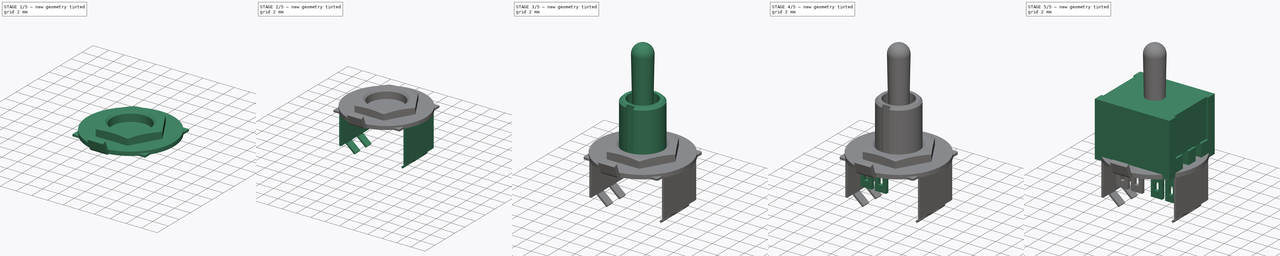
[diagram: build sequence overview — one tinted view per stage of 5, left to right]
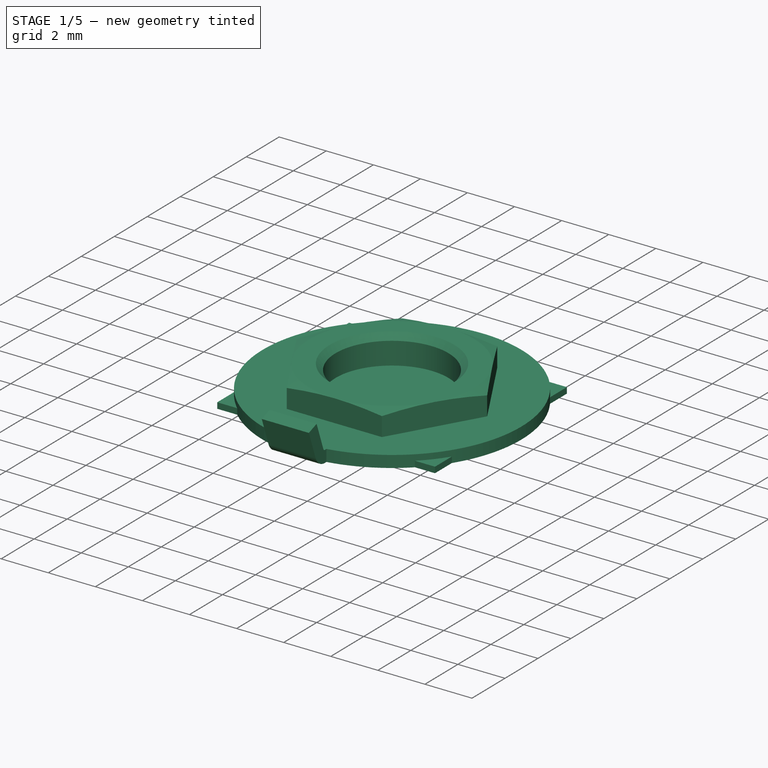
[diagram: stage 1 of 5 — iso view after this stage's code; geometry added in this stage tinted green]
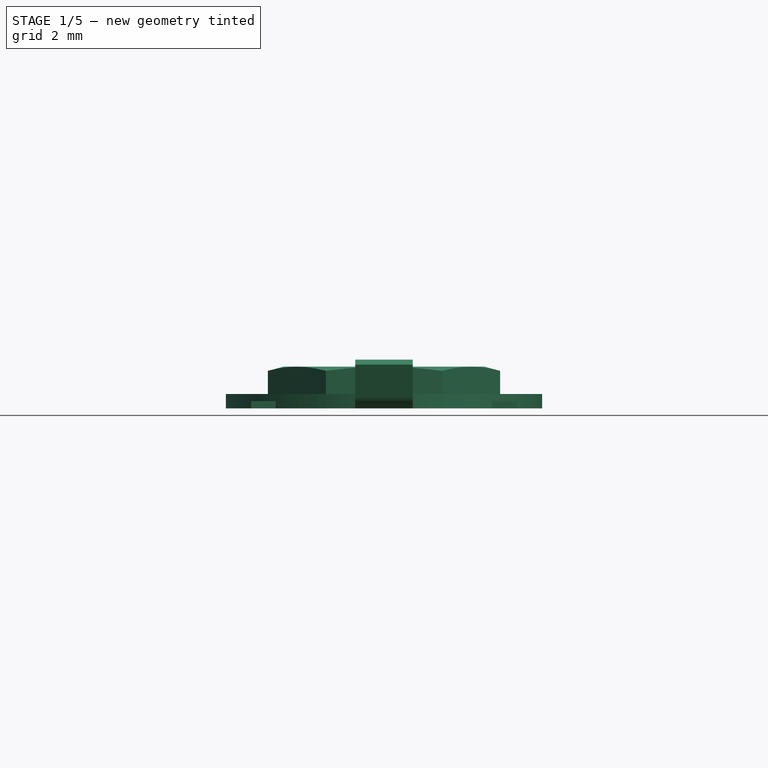
[diagram: stage 1 of 5 — front view after this stage's code; geometry added in this stage tinted green]
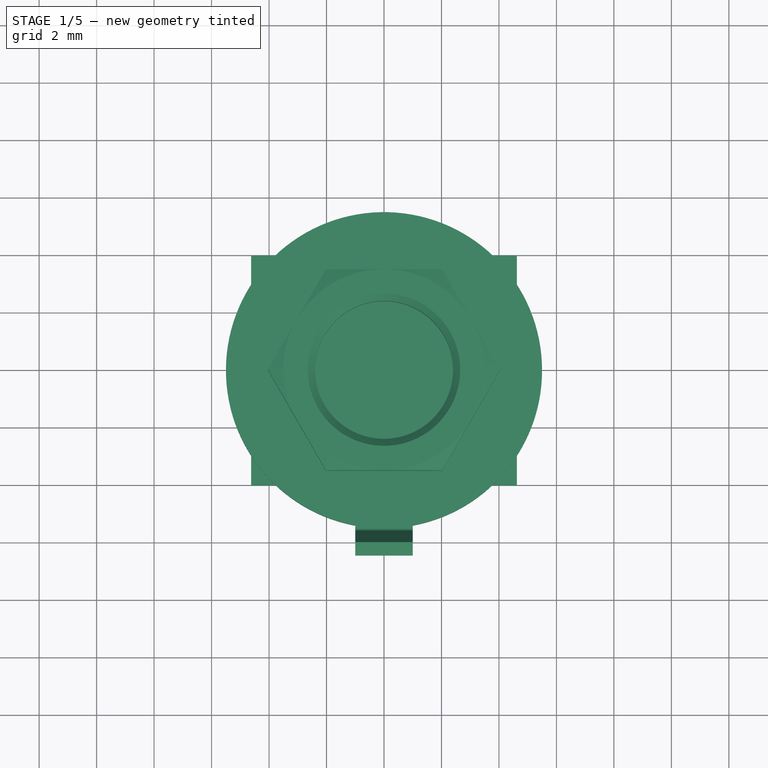
[diagram: stage 1 of 5 — top view after this stage's code; geometry added in this stage tinted green]
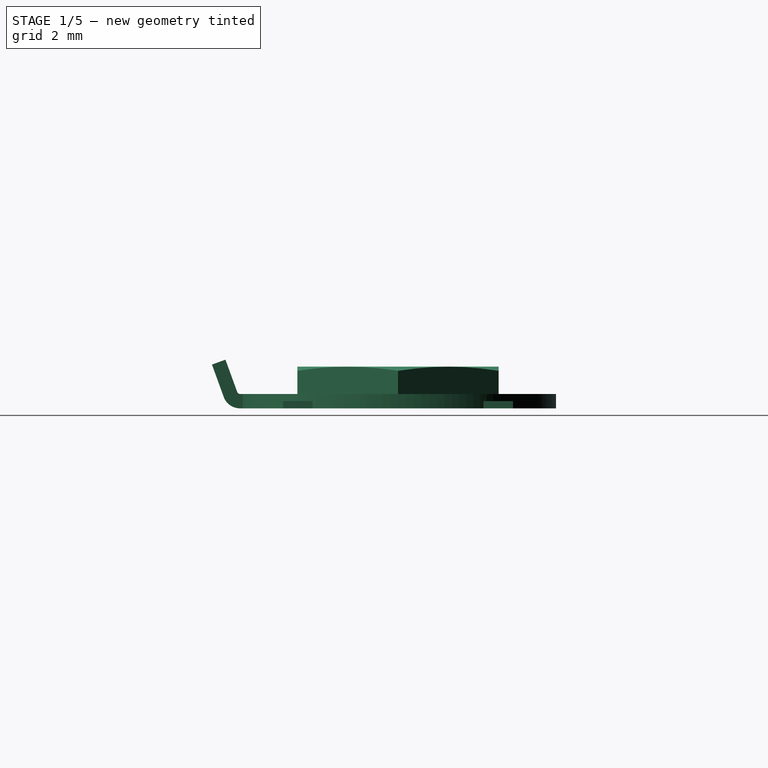
[diagram: stage 1 of 5 — right view after this stage's code; geometry added in this stage tinted green]
FCSTD DOCUMENT  (FreeCAD 0.20R29177 +426 (Git))
Label: Mini Toggle Switch
License: All rights reserved
LicenseURL: http://en.wikipedia.org/wiki/All_rights_reserved
objects: Sketcher::SketchObject×20, PartDesign::Pad×10, PartDesign::Pocket×8, PartDesign::Body×7, PartDesign::Fillet×2, PartDesign::Chamfer×2, Part::Mirroring×2, Part::MultiFuse×2, PartDesign::Revolution×2
note: 79 computed .brp shape members not serialized (recipe doc carries the construction recipe); baked Part::Feature solids carry a one-line shape summary decoded from their .brp

FEATURE [PartDesign::Body] Body
  Group = -> [Sketch,Pad,Sketch001,Pocket,Sketch002,Pocket001,Sketch003,Pocket002,Sketch004,Pad001]
  Origin = -> Origin
  Tip = -> Pad001
FEATURE [Sketcher::SketchObject] Sketch005
  FullyConstrained = true
  MapMode = 5
  Support = -> [XY_Plane001]
  sketch-geometry (4):
    g0: LineSegment StartX=-4.625 StartY=4 StartZ=0 EndX=4.625 EndY=4 EndZ=0
    g1: LineSegment StartX=4.625 StartY=4 StartZ=0 EndX=4.625 EndY=-4 EndZ=0
    g2: LineSegment StartX=4.625 StartY=-4 StartZ=0 EndX=-4.625 EndY=-4 EndZ=0
    g3: LineSegment StartX=-4.625 StartY=-4 StartZ=0 EndX=-4.625 EndY=4 EndZ=0
  constraints (11):
    c: Coincident(g0,g1)
    c: Coincident(g1,g2)
    c: Coincident(g2,g3)
    c: Coincident(g3,g0)
    c: Horizontal(g0)
    c: Horizontal(g2)
    c: Vertical(g1)
    c: Vertical(g3)
    c: Symmetric(g0,g1,g-1)
    c: DistanceX(g0,g0) = 9.25
    c: DistanceY(g3,g3) = 8
FEATURE [PartDesign::Pad] Pad002
  Direction = (0,0,1)
  Length = 0.25
  Length2 = 10
  Profile = -> Sketch005
  ReferenceAxis = -> Sketch005 [N_Axis]
  Type = 0
FEATURE [PartDesign::Body] Body001
  Group = -> [Sketch005,Pad002,Sketch006,Pad003,Sketch007,Pad004,Sketch008,Pocket003,Sketch009,Pocket004,Fillet,Fillet001,Sketch010,Pad005,Sketch011,Pocket005,Chamfer,Sketch015,Pocket006]
  Origin = -> Origin001
  Placement = pos=(0,0,6.75) rot=(0,0,1;0rad)
  Tip = -> Pocket006
FEATURE [Sketcher::SketchObject] Sketch016
  FullyConstrained = true
  MapMode = 5
  Support = -> [XY_Plane006]
  sketch-geometry (5):
    g0: ArcOfCircle CenterX=0 CenterY=0 CenterZ=0 NormalX=0 NormalY=0 NormalZ=1 AngleXU=0 Radius=2.5 StartAngle=4.89338 EndAngle=10.8146
    g1: LineSegment StartX=-0.45 StartY=-2.07 StartZ=0 EndX=0.45 EndY=-2.07 EndZ=0
    g2: LineSegment StartX=0.45 StartY=-2.07 StartZ=0 EndX=0.45 EndY=-2.45917 EndZ=0
    g3: LineSegment StartX=-0.45 StartY=-2.45917 StartZ=0 EndX=-0.45 EndY=-2.07 EndZ=0
    g4: Circle CenterX=0 CenterY=0 CenterZ=0 NormalX=0 NormalY=0 NormalZ=1 AngleXU=0 Radius=5.5
  constraints (13):
    c: Coincident(g1,g2)
    c: Coincident(g3,g1)
    c: Vertical(g2)
    c: Vertical(g3)
    c: Symmetric(g1,g1,g-2)
    c: DistanceX(g1,g1) = 0.9
    c: Diameter(g0) = 5
    c: Coincident(g0,g2)
    c: Coincident(g3,g0)
    c: Coincident(g4,g0)
    c: Coincident(g0,g-1)
    c: Diameter(g4) = 11
    c: DistanceY(g1,g0) = 2.07
FEATURE [PartDesign::Pad] Pad008
  Direction = (0,0,1)
  Length = 0.5
  Length2 = 10
  Profile = -> Sketch016
  ReferenceAxis = -> Sketch016 [N_Axis]
  Type = 0
FEATURE [Sketcher::SketchObject] Sketch017
  ExternalGeometry = -> [Pad008]
  FullyConstrained = true
  MapMode = 5
  Placement = pos=(0,0,0) rot=(0.57735,0.57735,0.57735;2.0944rad)
  Support = -> [YZ_Plane006]
  sketch-geometry (8):
    g0: ArcOfCircle CenterX=-5.5 CenterY=0.6 CenterZ=0 NormalX=0 NormalY=0 NormalZ=1 AngleXU=0 Radius=0.6 StartAngle=3.49066 EndAngle=4.71239
    g1: ArcOfCircle CenterX=-5.5 CenterY=0.6 CenterZ=0 NormalX=0 NormalY=0 NormalZ=1 AngleXU=0 Radius=0.1 StartAngle=3.49066 EndAngle=4.71239
    g2: LineSegment StartX=-5.59397 StartY=0.565798 StartZ=0 EndX=-6.00439 EndY=1.69343 EndZ=0
    g3: LineSegment StartX=-6.00439 StartY=1.69343 StartZ=0 EndX=-6.47424 EndY=1.52242 EndZ=0
    g4: LineSegment StartX=-6.47424 StartY=1.52242 StartZ=0 EndX=-6.06382 EndY=0.394788 EndZ=0
    g5: LineSegment StartX=-5.5 StartY=0.5 StartZ=0 EndX=-5.3 EndY=0.5 EndZ=0
    g6: LineSegment StartX=-5.3 StartY=0.5 StartZ=0 EndX=-5.3 EndY=-1.4e-15 EndZ=0
    g7: LineSegment StartX=-5.3 StartY=-1.4e-15 StartZ=0 EndX=-5.5 EndY=-1.4e-15 EndZ=0
  constraints (20):
    c: Coincident(g0,g-4)
    c: Coincident(g1,g0)
    c: Coincident(g1,g-3)
    c: Radius(g1) = 0.1
    c: Coincident(g2,g3)
    c: Coincident(g3,g4)
    c: Tangent(g0,g4) = -1.5708
    c: Tangent(g1,g2) = 1.5708
    c: Parallel(g2,g4)
    c: Perpendicular(g2,g3)
    c: Distance(g2) = 1.2
    c: Angle(g-3,g2) = 1.91986
    c: Vertical(g0,g1)
    c: Tangent(g1,g5) = -1.5708
    c: Coincident(g5,g6)
    c: PointOnObject(g6,g-4)
    c: Coincident(g6,g7)
    c: Coincident(g7,g0)
    c: Vertical(g6)
    c: DistanceX(g5,g5) = 0.2
FEATURE [PartDesign::Pad] Pad009
  BaseFeature = -> Pad008
  Direction = (1,-2e-16,3e-16)
  Length = 2
  Length2 = 10
  Midplane = true
  Profile = -> Sketch017
  ReferenceAxis = -> Sketch017 [N_Axis]
  Refine = true
  Type = 0
FEATURE [PartDesign::Body] Body006
  Group = -> [Sketch016,Pad008,Sketch017,Pad009]
  Origin = -> Origin006
  Placement = pos=(0,0,7) rot=(0,0,1;0rad)
  Tip = -> Pad009
FEATURE [Sketcher::SketchObject] Sketch018
  FullyConstrained = true
  MapMode = 5
  Placement = pos=(0,0,0) rot=(0.57735,0.57735,0.57735;2.0944rad)
  Support = -> [YZ_Plane007]
  sketch-geometry (5):
    g0: LineSegment StartX=2.4 StartY=0 StartZ=0 EndX=2.4 EndY=1.45 EndZ=0
    g1: LineSegment StartX=2.4 StartY=1.45 StartZ=0 EndX=3.5 EndY=1.45 EndZ=0
    g2: LineSegment StartX=3.5 StartY=1.45 StartZ=0 EndX=6.20574 EndY=0.725 EndZ=0
    g3: LineSegment StartX=6.20574 StartY=0.725 StartZ=0 EndX=3.5 EndY=0 EndZ=0
    g4: LineSegment StartX=3.5 StartY=0 StartZ=0 EndX=2.4 EndY=0 EndZ=0
  constraints (15):
    c: PointOnObject(g0,g-1)
    c: Vertical(g0)
    c: Coincident(g0,g1)
    c: Horizontal(g1)
    c: Coincident(g1,g2)
    c: Coincident(g2,g3)
    c: PointOnObject(g3,g-1)
    c: Coincident(g3,g4)
    c: Coincident(g4,g0)
    c: Equal(g4,g1)
    c: DistanceX(g-1,g0) = 2.4
    c: DistanceY(g0,g0) = 1.45
    c: Equal(g2,g3)
    c: Angle(g2,g3) = 0.523599
    c: DistanceX(g-1,g1) = 3.5
FEATURE [PartDesign::Revolution] Revolution001
  Angle = 360
  Axis = (-2e-16,3e-16,1)
  Base = (0,0,0)
  Placement = pos=(0,0,0) rot=(0.57735,0.57735,0.57735;2.0944rad)
  Profile = -> Sketch018
  ReferenceAxis = -> Sketch018 [V_Axis]
  Reversed = true
FEATURE [Sketcher::SketchObject] Sketch019
  FullyConstrained = false
  MapMode = 5
  Placement = pos=(-8e-16,6e-16,1.45) rot=(0,0,-1;1.5708rad)
  Support = -> [Revolution001]
  sketch-geometry (8):
    g0: LineSegment StartX=0 StartY=4.04145 StartZ=0 EndX=-3.5 EndY=2.02073 EndZ=0
    g1: LineSegment StartX=-3.5 StartY=2.02073 StartZ=0 EndX=-3.5 EndY=-2.02073 EndZ=0
    g2: LineSegment StartX=-3.5 StartY=-2.02073 StartZ=0 EndX=-9e-16 EndY=-4.04145 EndZ=0
    g3: LineSegment StartX=-9e-16 StartY=-4.04145 StartZ=0 EndX=3.5 EndY=-2.02073 EndZ=0
    g4: LineSegment StartX=3.5 StartY=-2.02073 StartZ=0 EndX=3.5 EndY=2.02073 EndZ=0
    g5: LineSegment StartX=3.5 StartY=2.02073 StartZ=0 EndX=0 EndY=4.04145 EndZ=0
    g6: Circle CenterX=0 CenterY=0 CenterZ=0 NormalX=0 NormalY=0 NormalZ=1 AngleXU=0 Radius=4.04145
    g7: Circle CenterX=0 CenterY=0 CenterZ=0 NormalX=0 NormalY=0 NormalZ=1 AngleXU=0 Radius=7.61354
  constraints (17):
    c: Coincident(g0,g1)
    c: Coincident(g1,g2)
    c: Coincident(g2,g3)
    c: Coincident(g3,g4)
    c: Coincident(g4,g5)
    c: Coincident(g5,g0)
    c: Equal(g0, g1-g5) x5
    c: PointOnObject(g0,g6)
    c: PointOnObject(g1,g6)
    c: PointOnObject(g2,g6)
    c: PointOnObject(g3,g6)
    c: PointOnObject(g4,g6)
    c: PointOnObject(g5,g6)
    c: Coincident(g6,g-1)
    c: PointOnObject(g5,g-2)
    c: DistanceX(g0,g4) = 7
    c: Coincident(g7,g6)
FEATURE [PartDesign::Pocket] Pocket007
  BaseFeature = -> Revolution001
  Direction = (6e-16,-4e-16,-1)
  Length = 5
  Length2 = 5
  Placement = pos=(0,0,0) rot=(0.57735,0.57735,0.57735;2.0944rad)
  Profile = -> Sketch019
  ReferenceAxis = -> Sketch019 [N_Axis]
  Type = 0
FEATURE [PartDesign::Chamfer] Chamfer001
  Angle = 45
  Base = -> Pocket007 [Edge2,Edge1]
  BaseFeature = -> Pocket007
  ChamferType = 0
  FlipDirection = false
  Placement = pos=(0,0,0) rot=(0.57735,0.57735,0.57735;2.0944rad)
  Size = 0.25
  Size2 = 1
  SupportTransform = false
  UseAllEdges = false
FEATURE [PartDesign::Body] Body007
  Group = -> [Sketch018,Revolution001,Sketch019,Pocket007,Chamfer001]
  Origin = -> Origin007
  Placement = pos=(0,0,10.5) rot=(0,0,1;0rad)
  Tip = -> Chamfer001
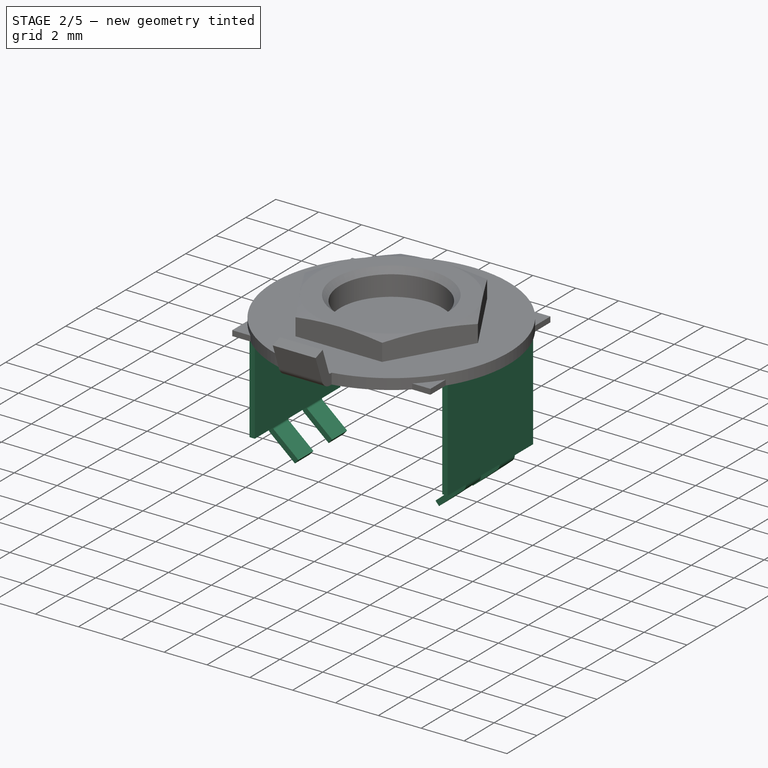
[diagram: stage 2 of 5 — iso view after this stage's code; geometry added in this stage tinted green]
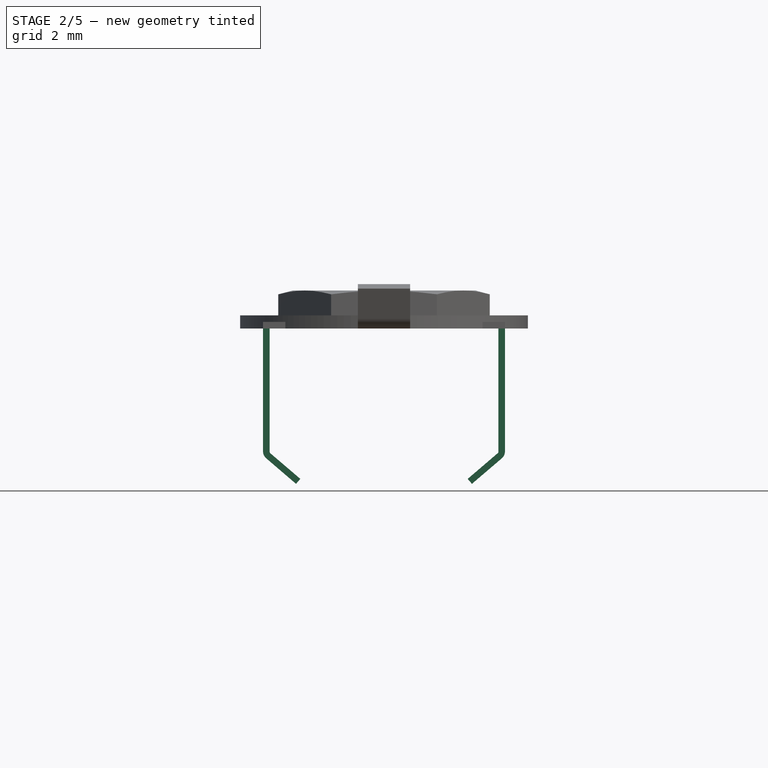
[diagram: stage 2 of 5 — front view after this stage's code; geometry added in this stage tinted green]
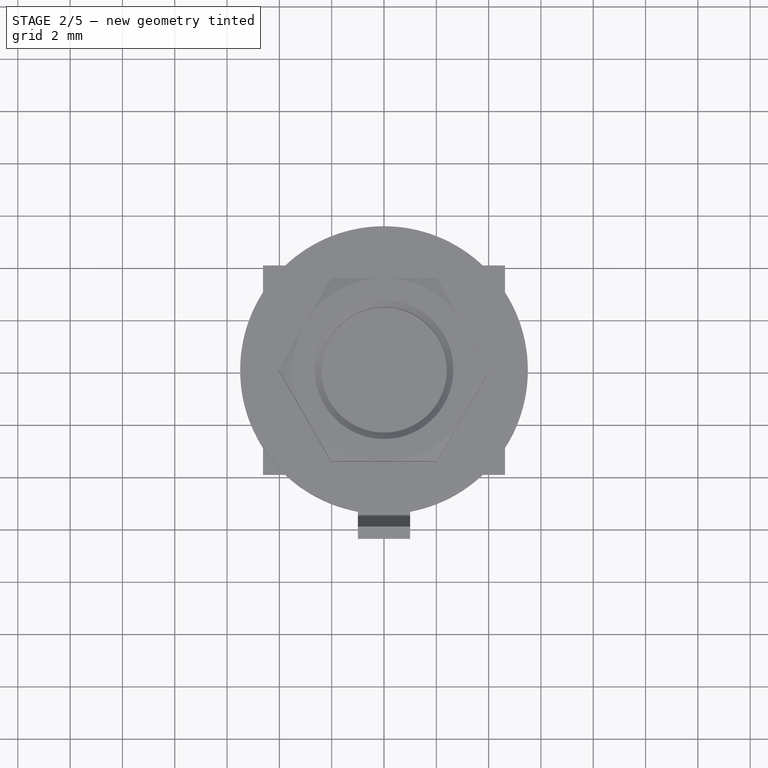
[diagram: stage 2 of 5 — top view after this stage's code; geometry added in this stage tinted green]
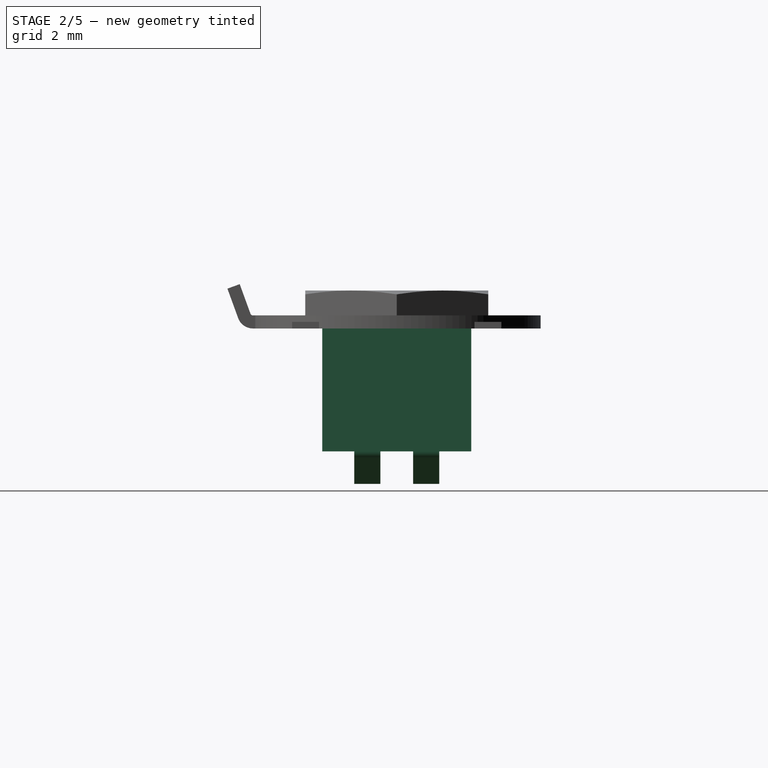
[diagram: stage 2 of 5 — right view after this stage's code; geometry added in this stage tinted green]
FEATURE [Sketcher::SketchObject] Sketch006
  ExternalGeometry = -> [Pad002]
  FullyConstrained = true
  MapMode = 5
  Placement = pos=(0,0,0.25) rot=(0,0,1;0rad)
  Support = -> [Pad002]
  sketch-geometry (8):
    g0: LineSegment StartX=-4.625 StartY=2.85 StartZ=0 EndX=-4.375 EndY=2.85 EndZ=0
    g1: LineSegment StartX=-4.375 StartY=2.85 StartZ=0 EndX=-4.375 EndY=-2.85 EndZ=0
    g2: LineSegment StartX=-4.375 StartY=-2.85 StartZ=0 EndX=-4.625 EndY=-2.85 EndZ=0
    g3: LineSegment StartX=-4.625 StartY=-2.85 StartZ=0 EndX=-4.625 EndY=2.85 EndZ=0
    g4: LineSegment StartX=4.625 StartY=2.85 StartZ=0 EndX=4.375 EndY=2.85 EndZ=0
    g5: LineSegment StartX=4.375 StartY=2.85 StartZ=0 EndX=4.375 EndY=-2.85 EndZ=0
    g6: LineSegment StartX=4.375 StartY=-2.85 StartZ=0 EndX=4.625 EndY=-2.85 EndZ=0
    g7: LineSegment StartX=4.625 StartY=-2.85 StartZ=0 EndX=4.625 EndY=2.85 EndZ=0
  constraints (23):
    c: Coincident(g0,g1)
    c: Coincident(g1,g2)
    c: Coincident(g2,g3)
    c: Coincident(g3,g0)
    c: Horizontal(g0)
    c: Horizontal(g2)
    c: Vertical(g3)
    c: PointOnObject(g0,g-3)
    c: Coincident(g4,g5)
    c: Coincident(g5,g6)
    c: Coincident(g6,g7)
    c: Coincident(g7,g4)
    c: Horizontal(g4)
    c: Horizontal(g6)
    c: Vertical(g5)
    c: Vertical(g7)
    c: PointOnObject(g4,g-4)
    c: Horizontal(g0,g4)
    c: Equal(g1,g5)
    c: Equal(g0,g4)
    c: Symmetric(g0,g1,g-1)
    c: DistanceX(g0,g0) = 0.25
    c: DistanceY(g3,g3) = 5.7
FEATURE [PartDesign::Pad] Pad003
  BaseFeature = -> Pad002
  Direction = (0,0,1)
  Length = 4.95
  Length2 = 10
  Profile = -> Sketch006
  ReferenceAxis = -> Sketch006 [N_Axis]
  Reversed = true
  Type = 0
FEATURE [Sketcher::SketchObject] Sketch007
  ExternalGeometry = -> [Pad003]
  FullyConstrained = true
  MapMode = 5
  Placement = pos=(0,0,0) rot=(1,0,0;1.5708rad)
  Support = -> [XZ_Plane001]
  sketch-geometry (12):
    g0: ArcOfCircle CenterX=-4.275 CenterY=-4.7 CenterZ=0 NormalX=0 NormalY=0 NormalZ=1 AngleXU=0 Radius=0.1 StartAngle=3.14159 EndAngle=4.0049
    g1: ArcOfCircle CenterX=-4.275 CenterY=-4.7 CenterZ=0 NormalX=0 NormalY=0 NormalZ=1 AngleXU=0 Radius=0.35 StartAngle=3.14159 EndAngle=4.0049
    g2: LineSegment StartX=-4.33999 StartY=-4.776 StartZ=0 EndX=-3.2 EndY=-5.75089 EndZ=0
    g3: LineSegment StartX=-3.2 StartY=-5.75089 StartZ=0 EndX=-3.36248 EndY=-5.94089 EndZ=0
    g4: LineSegment StartX=-3.36248 StartY=-5.94089 StartZ=0 EndX=-4.50248 EndY=-4.966 EndZ=0
    g5: LineSegment StartX=4.33999 StartY=-4.776 StartZ=0 EndX=3.2 EndY=-5.75089 EndZ=0
    g6: LineSegment StartX=3.2 StartY=-5.75089 StartZ=0 EndX=3.36248 EndY=-5.94089 EndZ=0
    g7: LineSegment StartX=3.36248 StartY=-5.94089 StartZ=0 EndX=4.50248 EndY=-4.966 EndZ=0
    g8: ArcOfCircle CenterX=4.275 CenterY=-4.7 CenterZ=0 NormalX=0 NormalY=0 NormalZ=1 AngleXU=0 Radius=0.1 StartAngle=5.41988 EndAngle=6.28319
    g9: ArcOfCircle CenterX=4.275 CenterY=-4.7 CenterZ=0 NormalX=0 NormalY=0 NormalZ=1 AngleXU=0 Radius=0.35 StartAngle=5.41988 EndAngle=6.28319
    g10: LineSegment StartX=-4.625 StartY=-4.7 StartZ=0 EndX=-4.375 EndY=-4.7 EndZ=0
    g11: LineSegment StartX=4.625 StartY=-4.7 StartZ=0 EndX=4.375 EndY=-4.7 EndZ=0
  constraints (29):
    c: Coincident(g1,g10)
    c: Coincident(g1,g-3)
    c: Coincident(g0,g10)
    c: Coincident(g0,g-4)
    c: Coincident(g8,g11)
    c: Coincident(g8,g-5)
    c: Coincident(g9,g11)
    c: Coincident(g9,g-6)
    c: Tangent(g5,g8) = 1.5708
    c: Tangent(g7,g9) = -1.5708
    c: Coincident(g5,g6)
    c: Coincident(g6,g7)
    c: Parallel(g5,g7)
    c: Perpendicular(g6,g5)
    c: Distance(g5) = 1.5
    c: Coincident(g8,g9)
    c: Horizontal(g8,g8)
    c: Coincident(g0,g1)
    c: Tangent(g0,g2) = -1.5708
    c: Tangent(g1,g4) = 1.5708
    c: Horizontal(g0,g0)
    c: Parallel(g2,g4)
    c: Coincident(g2,g3)
    c: Coincident(g3,g4)
    c: Perpendicular(g2,g3)
    c: DistanceX(g2,g5) = 6.4
    c: Symmetric(g5,g2,g-2)
    c: Radius(g8) = 0.1
    c: Equal(g0,g8)
FEATURE [PartDesign::Pad] Pad004
  BaseFeature = -> Pad003
  Direction = (0,-1,2e-16)
  Length = 3.25
  Length2 = 10
  Midplane = true
  Profile = -> Sketch007
  ReferenceAxis = -> Sketch007 [N_Axis]
  Type = 0
FEATURE [Sketcher::SketchObject] Sketch008
  ExternalGeometry = -> [Pad004]
  FullyConstrained = false
  MapMode = 5
  Placement = pos=(0,0,0) rot=(1,0,0;1.5708rad)
  Support = -> [XZ_Plane001]
  sketch-geometry (4):
    g0: LineSegment StartX=-4.625 StartY=-4.7 StartZ=0 EndX=4.625 EndY=-4.7 EndZ=0
    g1: LineSegment StartX=4.625 StartY=-4.7 StartZ=0 EndX=4.625 EndY=-7.74331 EndZ=0
    g2: LineSegment StartX=4.625 StartY=-7.74331 StartZ=0 EndX=-4.625 EndY=-7.74331 EndZ=0
    g3: LineSegment StartX=-4.625 StartY=-7.74331 StartZ=0 EndX=-4.625 EndY=-4.7 EndZ=0
  constraints (9):
    c: Coincident(g0,g1)
    c: Coincident(g1,g2)
    c: Coincident(g2,g3)
    c: Coincident(g3,g0)
    c: Horizontal(g2)
    c: Vertical(g1)
    c: Vertical(g3)
    c: Coincident(g0,g-3)
    c: Coincident(g0,g-4)
FEATURE [PartDesign::Pocket] Pocket003
  BaseFeature = -> Pad004
  Direction = (0,1,-2e-16)
  Length = 1.25
  Length2 = 5
  Midplane = true
  Profile = -> Sketch008
  ReferenceAxis = -> Sketch008 [N_Axis]
  Refine = true
  Type = 0
FEATURE [Sketcher::SketchObject] Sketch009
  ExternalGeometry = -> [Pocket003]
  FullyConstrained = true
  MapMode = 5
  Placement = pos=(0,0,0) rot=(1,0,0;3.14159rad)
  Support = -> [Pocket003]
  sketch-geometry (16):
    g0: LineSegment StartX=-4.625 StartY=2.85 StartZ=0 EndX=-4.375 EndY=2.85 EndZ=0
    g1: LineSegment StartX=-4.375 StartY=2.85 StartZ=0 EndX=-4.375 EndY=2.86 EndZ=0
    g2: LineSegment StartX=-4.375 StartY=2.86 StartZ=0 EndX=-4.625 EndY=2.86 EndZ=0
    g3: LineSegment StartX=-4.625 StartY=2.86 StartZ=0 EndX=-4.625 EndY=2.85 EndZ=0
    g4: LineSegment StartX=-4.625 StartY=-2.85 StartZ=0 EndX=-4.375 EndY=-2.85 EndZ=0
    g5: LineSegment StartX=-4.375 StartY=-2.85 StartZ=0 EndX=-4.375 EndY=-2.86 EndZ=0
    g6: LineSegment StartX=-4.375 StartY=-2.86 StartZ=0 EndX=-4.625 EndY=-2.86 EndZ=0
    g7: LineSegment StartX=-4.625 StartY=-2.86 StartZ=0 EndX=-4.625 EndY=-2.85 EndZ=0
    g8: LineSegment StartX=4.625 StartY=-2.85 StartZ=0 EndX=4.375 EndY=-2.85 EndZ=0
    g9: LineSegment StartX=4.375 StartY=-2.85 StartZ=0 EndX=4.375 EndY=-2.86 EndZ=0
    g10: LineSegment StartX=4.375 StartY=-2.86 StartZ=0 EndX=4.625 EndY=-2.86 EndZ=0
    g11: LineSegment StartX=4.625 StartY=-2.86 StartZ=0 EndX=4.625 EndY=-2.85 EndZ=0
    g12: LineSegment StartX=4.625 StartY=2.85 StartZ=0 EndX=4.375 EndY=2.85 EndZ=0
    g13: LineSegment StartX=4.375 StartY=2.85 StartZ=0 EndX=4.375 EndY=2.86 EndZ=0
    g14: LineSegment StartX=4.375 StartY=2.86 StartZ=0 EndX=4.625 EndY=2.86 EndZ=0
    g15: LineSegment StartX=4.625 StartY=2.86 StartZ=0 EndX=4.625 EndY=2.85 EndZ=0
  constraints (40):
    c: Coincident(g0,g1)
    c: Coincident(g1,g2)
    c: Coincident(g2,g3)
    c: Coincident(g3,g0)
    c: Horizontal(g2)
    c: Vertical(g1)
    c: Vertical(g3)
    c: Coincident(g0,g-3)
    c: Coincident(g4,g5)
    c: Coincident(g5,g6)
    c: Coincident(g6,g7)
    c: Coincident(g7,g4)
    c: Horizontal(g6)
    c: Vertical(g5)
    c: Vertical(g7)
    c: Coincident(g4,g-4)
    c: Coincident(g8,g9)
    c: Coincident(g9,g10)
    c: Coincident(g10,g11)
    c: Coincident(g11,g8)
    c: Horizontal(g10)
    c: Vertical(g9)
    c: Vertical(g11)
    c: Coincident(g8,g-5)
    c: Coincident(g12,g13)
    c: Coincident(g13,g14)
    c: Coincident(g14,g15)
    c: Coincident(g15,g12)
    c: Horizontal(g14)
    c: Vertical(g13)
    c: Vertical(g15)
    c: Coincident(g12,g-6)
    c: Coincident(g12,g-6)
    c: Coincident(g0,g-3)
    c: Coincident(g-4,g4)
    c: Coincident(g8,g-5)
    c: Equal(g9,g13)
    c: Equal(g13,g1)
    c: Equal(g1,g5)
    c: DistanceY(g7,g7) = 0.01
FEATURE [PartDesign::Pocket] Pocket004
  BaseFeature = -> Pocket003
  Direction = (0,0,1)
  Length = 5
  Length2 = 5
  Profile = -> Sketch009
  ReferenceAxis = -> Sketch009 [N_Axis]
  Type = 0
FEATURE [PartDesign::Fillet] Fillet
  Base = -> Pocket004 [Edge57,Edge17]
  BaseFeature = -> Pocket004
  Radius = 0.25
  SupportTransform = false
  UseAllEdges = false
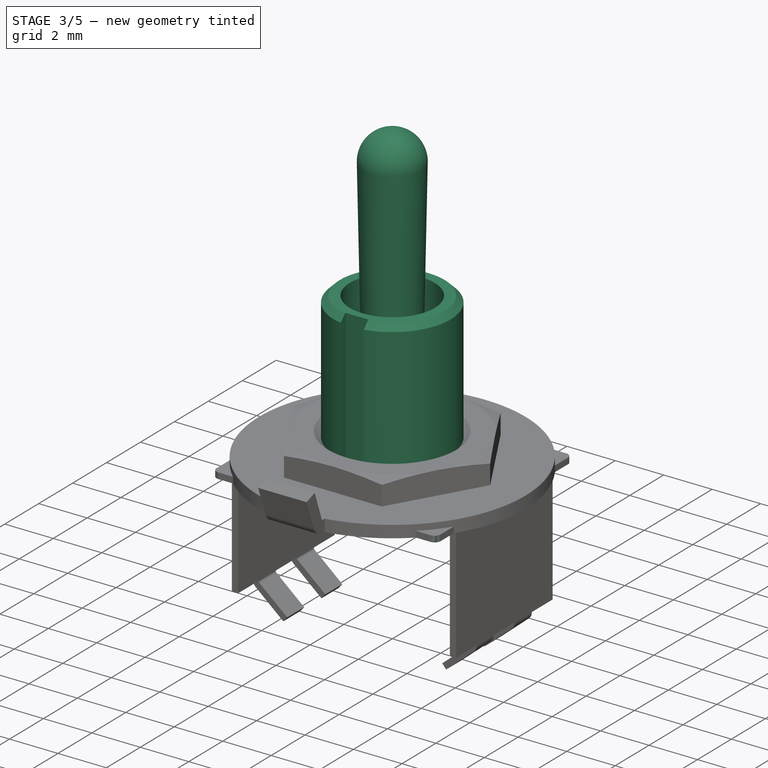
[diagram: stage 3 of 5 — iso view after this stage's code; geometry added in this stage tinted green]
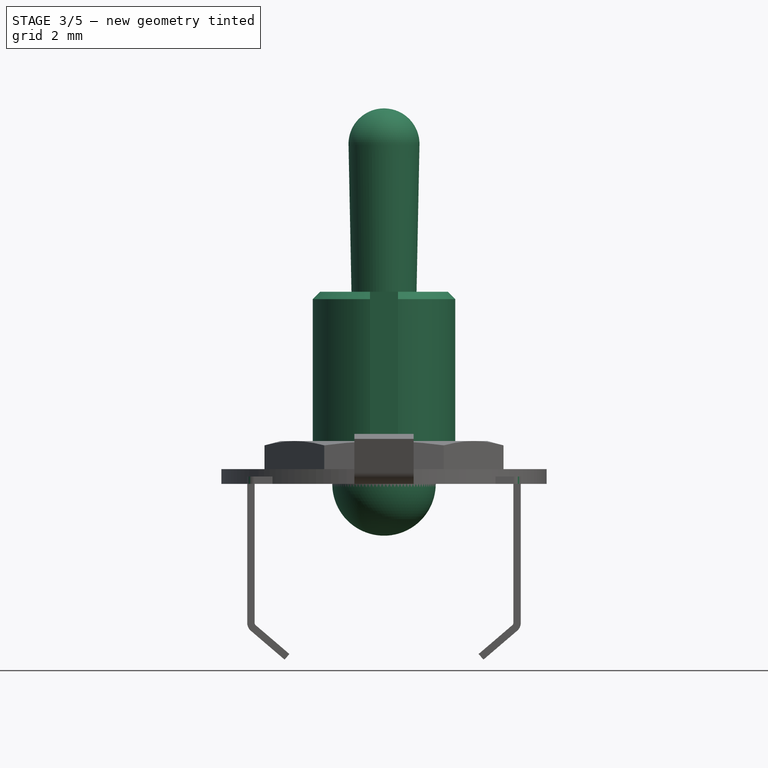
[diagram: stage 3 of 5 — front view after this stage's code; geometry added in this stage tinted green]
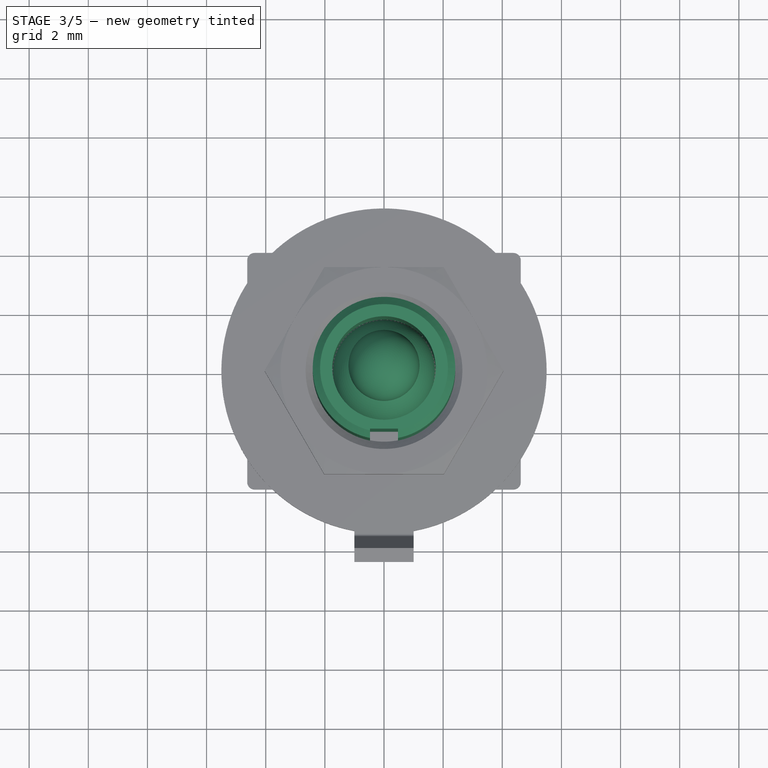
[diagram: stage 3 of 5 — top view after this stage's code; geometry added in this stage tinted green]
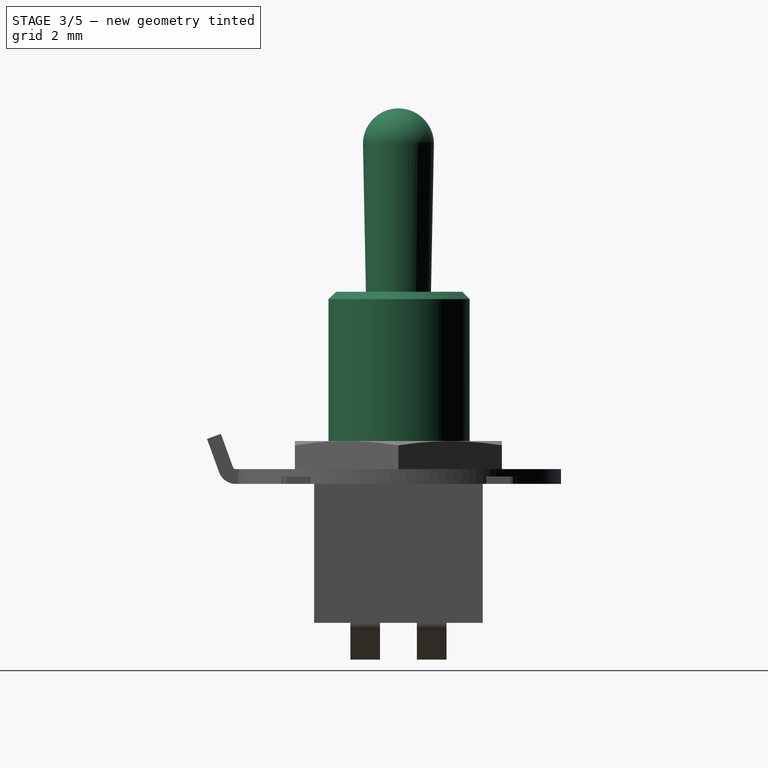
[diagram: stage 3 of 5 — right view after this stage's code; geometry added in this stage tinted green]
FEATURE [PartDesign::Fillet] Fillet001
  Base = -> Fillet [Edge84,Edge88,Edge87,Edge90]
  BaseFeature = -> Fillet
  Radius = 0.25
  SupportTransform = false
  UseAllEdges = false
FEATURE [Sketcher::SketchObject] Sketch010
  FullyConstrained = true
  MapMode = 5
  Placement = pos=(0,0,0.25) rot=(0,0,1;0rad)
  Support = -> [Fillet001]
  sketch-geometry (1):
    g0: Circle CenterX=0 CenterY=0 CenterZ=0 NormalX=0 NormalY=0 NormalZ=1 AngleXU=0 Radius=2.41
  constraints (2):
    c: Coincident(g0,g-1)
    c: Diameter(g0) = 4.82
FEATURE [PartDesign::Pad] Pad005
  BaseFeature = -> Fillet001
  Direction = (0,0,1)
  Length = 6.25
  Length2 = 10
  Profile = -> Sketch010
  ReferenceAxis = -> Sketch010 [N_Axis]
  Type = 0
FEATURE [Sketcher::SketchObject] Sketch011
  FullyConstrained = true
  MapMode = 5
  Placement = pos=(0,0,6.5) rot=(0,0,1;0rad)
  Support = -> [Pad005]
  sketch-geometry (1):
    g0: Circle CenterX=0 CenterY=0 CenterZ=0 NormalX=0 NormalY=0 NormalZ=1 AngleXU=0 Radius=1.75
  constraints (2):
    c: Coincident(g0,g-1)
    c: Diameter(g0) = 3.5
FEATURE [PartDesign::Pocket] Pocket005
  BaseFeature = -> Pad005
  Direction = (0,0,-1)
  Length = 5
  Length2 = 5
  Profile = -> Sketch011
  ReferenceAxis = -> Sketch011 [N_Axis]
  Type = 1
FEATURE [PartDesign::Chamfer] Chamfer
  Angle = 45
  Base = -> Pocket005 [Edge67]
  BaseFeature = -> Pocket005
  ChamferType = 0
  FlipDirection = false
  Size = 0.25
  Size2 = 1
  SupportTransform = false
  UseAllEdges = false
FEATURE [Sketcher::SketchObject] Sketch014
  FullyConstrained = true
  MapMode = 5
  Placement = pos=(0,0,0) rot=(0.57735,0.57735,0.57735;2.0944rad)
  Support = -> [YZ_Plane005]
  sketch-geometry (4):
    g0: ArcOfCircle CenterX=0 CenterY=0 CenterZ=0 NormalX=0 NormalY=0 NormalZ=1 AngleXU=0 Radius=1.75 StartAngle=4.71239 EndAngle=7.24574
    g1: ArcOfCircle CenterX=0 CenterY=11.5 CenterZ=0 NormalX=0 NormalY=0 NormalZ=1 AngleXU=0 Radius=1.2 StartAngle=6.26329 EndAngle=7.85398
    g2: LineSegment StartX=4e-16 StartY=12.7 StartZ=0 EndX=0 EndY=-1.75 EndZ=0
    g3: LineSegment StartX=1 StartY=1.43614 StartZ=0 EndX=1.19976 EndY=11.4761 EndZ=0
  constraints (12):
    c: Coincident(g0,g-1)
    c: PointOnObject(g0,g-2)
    c: PointOnObject(g1,g-2)
    c: DistanceY(g0,g1) = 11.5
    c: PointOnObject(g1,g-2)
    c: Coincident(g2,g1)
    c: Coincident(g2,g0)
    c: Tangent(g1,g3) = -1.5708
    c: Coincident(g0,g3)
    c: Radius(g0) = 1.75
    c: Radius(g1) = 1.2
    c: DistanceX(g0,g0) = 1
FEATURE [PartDesign::Revolution] Revolution
  Angle = 360
  Axis = (-2e-16,3e-16,1)
  Base = (0,0,0)
  Placement = pos=(0,0,0) rot=(0.57735,0.57735,0.57735;2.0944rad)
  Profile = -> Sketch014
  ReferenceAxis = -> Sketch014 [V_Axis]
  Reversed = true
FEATURE [PartDesign::Body] Body005
  Group = -> [Sketch014,Revolution]
  Origin = -> Origin005
  Placement = pos=(0,0,10) rot=(1,0,0;0.20944rad)
  Tip = -> Revolution
FEATURE [Sketcher::SketchObject] Sketch015
  FullyConstrained = false
  MapMode = 5
  Placement = pos=(0,0,6.5) rot=(0,0,1;0rad)
  Support = -> [Chamfer]
  sketch-geometry (4):
    g0: LineSegment StartX=-0.475 StartY=-2.05 StartZ=0 EndX=0.475 EndY=-2.05 EndZ=0
    g1: LineSegment StartX=0.475 StartY=-2.05 StartZ=0 EndX=0.475 EndY=-2.65785 EndZ=0
    g2: LineSegment StartX=0.475 StartY=-2.65785 StartZ=0 EndX=-0.475 EndY=-2.65785 EndZ=0
    g3: LineSegment StartX=-0.475 StartY=-2.65785 StartZ=0 EndX=-0.475 EndY=-2.05 EndZ=0
  constraints (10):
    c: Coincident(g0,g1)
    c: Coincident(g1,g2)
    c: Coincident(g2,g3)
    c: Coincident(g3,g0)
    c: Horizontal(g2)
    c: Vertical(g1)
    c: Vertical(g3)
    c: Symmetric(g0,g0,g-2)
    c: DistanceX(g2,g2) = 0.95
    c: DistanceY(g0,g-1) = 2.05
FEATURE [PartDesign::Pocket] Pocket006
  BaseFeature = -> Chamfer
  Direction = (0,0,-1)
  Length = 6.25
  Length2 = 5
  Profile = -> Sketch015
  ReferenceAxis = -> Sketch015 [N_Axis]
  Refine = true
  Type = 0
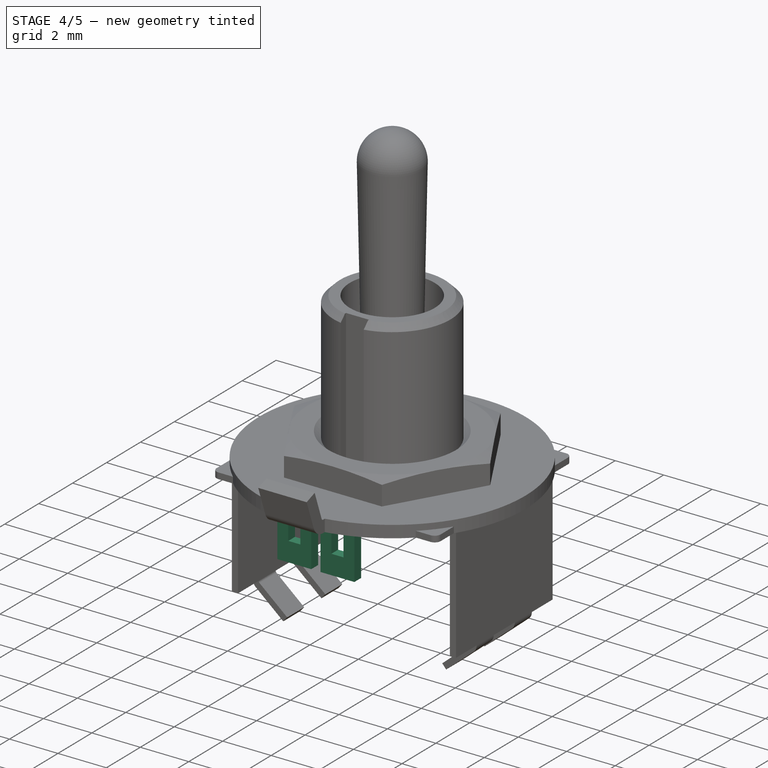
[diagram: stage 4 of 5 — iso view after this stage's code; geometry added in this stage tinted green]
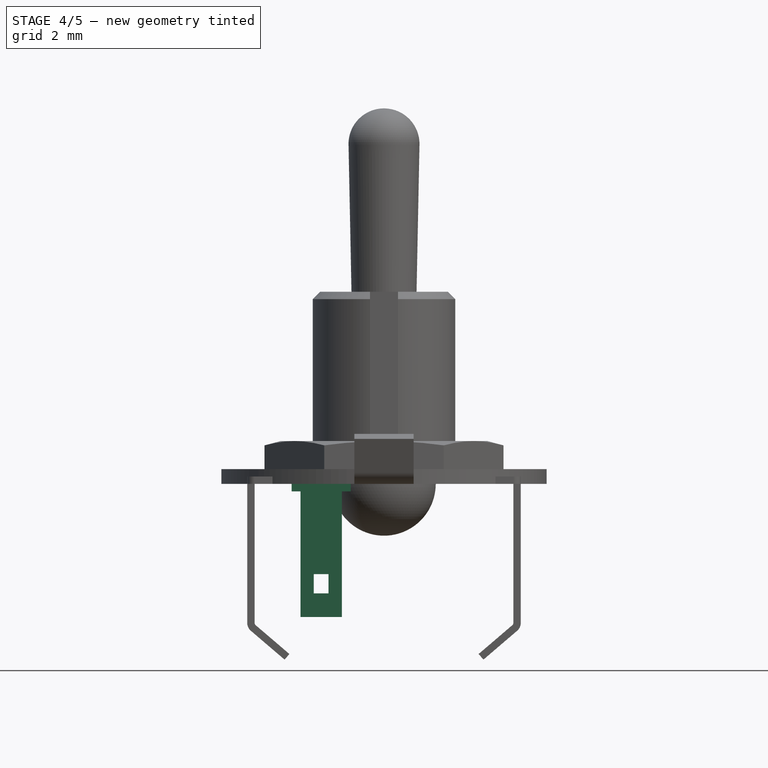
[diagram: stage 4 of 5 — front view after this stage's code; geometry added in this stage tinted green]
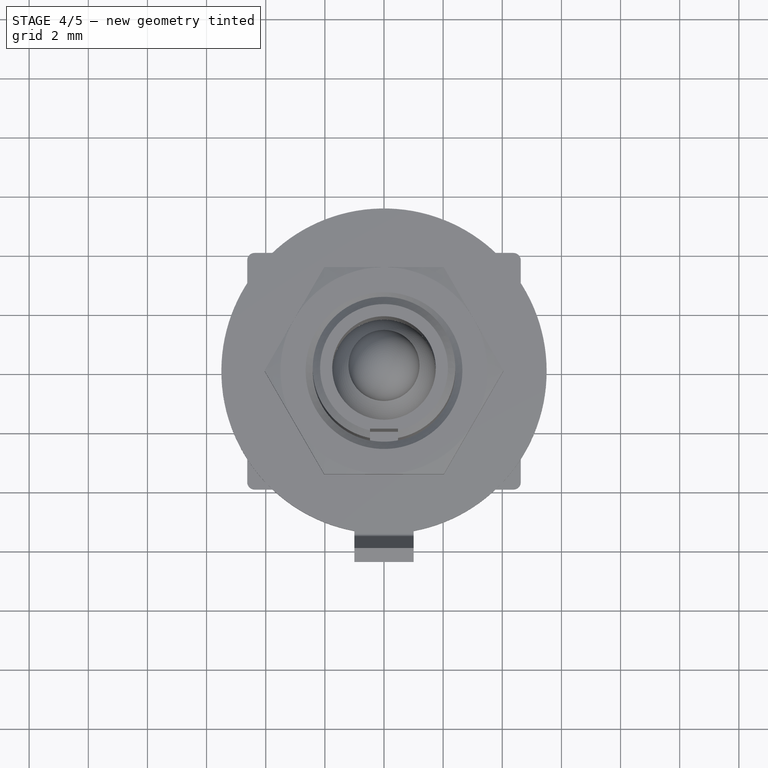
[diagram: stage 4 of 5 — top view after this stage's code; geometry added in this stage tinted green]
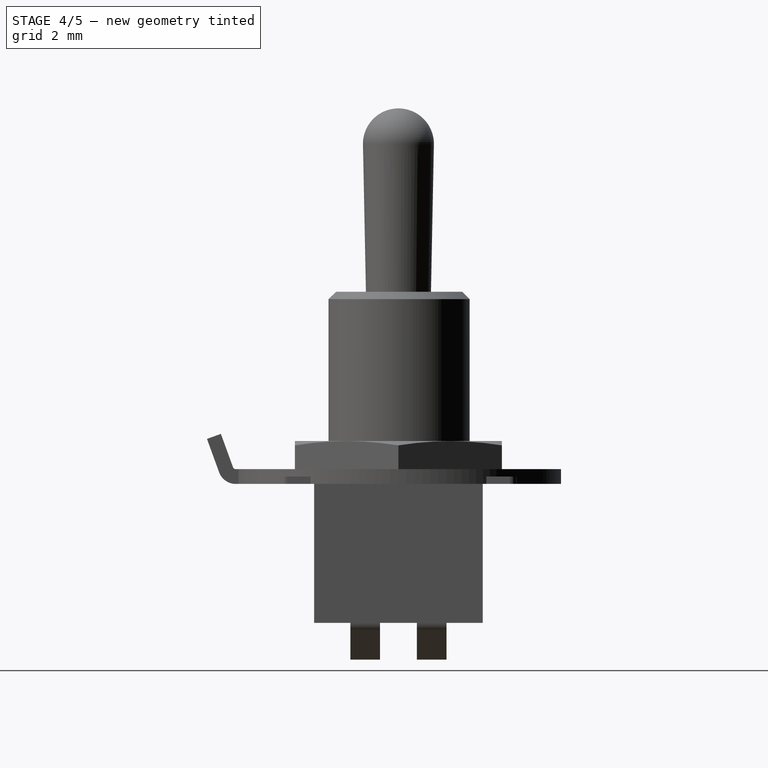
[diagram: stage 4 of 5 — right view after this stage's code; geometry added in this stage tinted green]
FEATURE [Sketcher::SketchObject] Sketch012
  FullyConstrained = true
  MapMode = 5
  Placement = pos=(0,0,0) rot=(0.57735,0.57735,0.57735;2.0944rad)
  Support = -> [YZ_Plane002]
  sketch-geometry (12):
    g0: LineSegment StartX=-1 StartY=0 StartZ=0 EndX=1 EndY=0 EndZ=0
    g1: LineSegment StartX=1 StartY=0 StartZ=0 EndX=1 EndY=-0.25 EndZ=0
    g2: LineSegment StartX=1 StartY=-0.25 StartZ=0 EndX=0.7 EndY=-0.25 EndZ=0
    g3: LineSegment StartX=-1 StartY=-0.25 StartZ=0 EndX=-1 EndY=0 EndZ=0
    g4: LineSegment StartX=0.7 StartY=-0.25 StartZ=0 EndX=0.7 EndY=-4.5 EndZ=0
    g5: LineSegment StartX=0.7 StartY=-4.5 StartZ=0 EndX=-0.7 EndY=-4.5 EndZ=0
    g6: LineSegment StartX=-0.7 StartY=-4.5 StartZ=0 EndX=-0.7 EndY=-0.25 EndZ=0
    g7: LineSegment StartX=-0.7 StartY=-0.25 StartZ=0 EndX=-1 EndY=-0.25 EndZ=0
    g8: LineSegment StartX=-0.25 StartY=-2.7 StartZ=0 EndX=0.25 EndY=-2.7 EndZ=0
    g9: LineSegment StartX=0.25 StartY=-2.7 StartZ=0 EndX=0.25 EndY=-3.7 EndZ=0
    g10: LineSegment StartX=0.25 StartY=-3.7 StartZ=0 EndX=-0.25 EndY=-3.7 EndZ=0
    g11: LineSegment StartX=-0.25 StartY=-3.7 StartZ=0 EndX=-0.25 EndY=-2.7 EndZ=0
  constraints (34):
    c: Coincident(g0,g1)
    c: Coincident(g1,g2)
    c: Coincident(g7,g3)
    c: Coincident(g3,g0)
    c: Horizontal(g2)
    c: Vertical(g1)
    c: Vertical(g3)
    c: PointOnObject(g0,g-1)
    c: Coincident(g4,g5)
    c: Coincident(g5,g6)
    c: Horizontal(g5)
    c: Vertical(g4)
    c: Vertical(g6)
    c: Equal(g7,g2)
    c: Symmetric(g0,g0,g-2)
    c: DistanceX(g0,g0) = 2
    c: Coincident(g6,g7)
    c: Coincident(g2,g4)
    c: DistanceY(g3,g3) = 0.25
    c: Horizontal(g7)
    c: Equal(g1,g3)
    c: DistanceX(g6,g2) = 1.4
    c: DistanceY(g6,g6) = 4.25
    c: Coincident(g8,g9)
    c: Coincident(g9,g10)
    c: Coincident(g10,g11)
    c: Coincident(g11,g8)
    c: Horizontal(g10)
    c: Vertical(g9)
    c: Vertical(g11)
    c: Symmetric(g8,g8,g-2)
    c: DistanceY(g4,g9) = 0.8
    c: DistanceY(g9,g9) = 1
    c: DistanceX(g10,g10) = 0.5
FEATURE [PartDesign::Pad] Pad006
  Direction = (1,-2e-16,3e-16)
  Length = 0.4
  Length2 = 10
  Midplane = true
  Placement = pos=(0,0,0) rot=(0.57735,0.57735,0.57735;2.0944rad)
  Profile = -> Sketch012
  ReferenceAxis = -> Sketch012 [N_Axis]
  Type = 0
FEATURE [PartDesign::Body] Body002
  Group = -> [Sketch012,Pad006]
  Origin = -> Origin002
  Placement = pos=(2.125,-5e-16,0) rot=(0,0,1;4.71239rad)
  Tip = -> Pad006
FEATURE [Sketcher::SketchObject] Sketch013
  FullyConstrained = true
  MapMode = 5
  Placement = pos=(0,0,0) rot=(0.57735,0.57735,0.57735;2.0944rad)
  Support = -> [YZ_Plane004]
  sketch-geometry (12):
    g0: LineSegment StartX=-1 StartY=0 StartZ=0 EndX=1 EndY=0 EndZ=0
    g1: LineSegment StartX=1 StartY=0 StartZ=0 EndX=1 EndY=-0.25 EndZ=0
    g2: LineSegment StartX=1 StartY=-0.25 StartZ=0 EndX=0.7 EndY=-0.25 EndZ=0
    g3: LineSegment StartX=-1 StartY=-0.25 StartZ=0 EndX=-1 EndY=0 EndZ=0
    g4: LineSegment StartX=0.7 StartY=-0.25 StartZ=0 EndX=0.7 EndY=-3.05 EndZ=0
    g5: LineSegment StartX=0.7 StartY=-3.05 StartZ=0 EndX=-0.7 EndY=-3.05 EndZ=0
    g6: LineSegment StartX=-0.7 StartY=-3.05 StartZ=0 EndX=-0.7 EndY=-0.25 EndZ=0
    g7: LineSegment StartX=-0.7 StartY=-0.25 StartZ=0 EndX=-1 EndY=-0.25 EndZ=0
    g8: LineSegment StartX=-0.25 StartY=-1.25 StartZ=0 EndX=0.25 EndY=-1.25 EndZ=0
    g9: LineSegment StartX=0.25 StartY=-1.25 StartZ=0 EndX=0.25 EndY=-2.25 EndZ=0
    g10: LineSegment StartX=0.25 StartY=-2.25 StartZ=0 EndX=-0.25 EndY=-2.25 EndZ=0
    g11: LineSegment StartX=-0.25 StartY=-2.25 StartZ=0 EndX=-0.25 EndY=-1.25 EndZ=0
  constraints (34):
    c: Coincident(g0,g1)
    c: Coincident(g1,g2)
    c: Coincident(g7,g3)
    c: Coincident(g3,g0)
    c: Horizontal(g2)
    c: Vertical(g1)
    c: Vertical(g3)
    c: PointOnObject(g0,g-1)
    c: Coincident(g4,g5)
    c: Coincident(g5,g6)
    c: Horizontal(g5)
    c: Vertical(g4)
    c: Vertical(g6)
    c: Equal(g7,g2)
    c: Symmetric(g0,g0,g-2)
    c: DistanceX(g0,g0) = 2
    c: Coincident(g6,g7)
    c: Coincident(g2,g4)
    c: DistanceY(g3,g3) = 0.25
    c: Horizontal(g7)
    c: Equal(g1,g3)
    c: DistanceX(g6,g2) = 1.4
    c: DistanceY(g6,g6) = 2.8
    c: Coincident(g8,g9)
    c: Coincident(g9,g10)
    c: Coincident(g10,g11)
    c: Coincident(g11,g8)
    c: Horizontal(g10)
    c: Vertical(g9)
    c: Vertical(g11)
    c: Symmetric(g8,g8,g-2)
    c: DistanceY(g4,g9) = 0.8
    c: DistanceY(g9,g9) = 1
    c: DistanceX(g10,g10) = 0.5
FEATURE [PartDesign::Pad] Pad007
  Direction = (1,-2e-16,3e-16)
  Length = 0.4
  Length2 = 10
  Midplane = true
  Placement = pos=(0,0,0) rot=(0.57735,0.57735,0.57735;2.0944rad)
  Profile = -> Sketch013
  ReferenceAxis = -> Sketch013 [N_Axis]
  Type = 0
FEATURE [PartDesign::Body] Body004
  Group = -> [Sketch013,Pad007]
  Origin = -> Origin004
  Placement = pos=(2.125,-2.54,0) rot=(0,0,-1;1.5708rad)
  Tip = -> Pad007
FEATURE [Part::Mirroring] Part__Mirroring  label="Body004 (Mirror #1)"
  Base = (0,0,0)
  Normal = (0,1,0)
  Source = -> Body004
FEATURE [Part::MultiFuse] Fusion
  Shapes = -> [Body002,Part__Mirroring,Body004]
FEATURE [Part::Mirroring] Part__Mirroring001  label="Fusion (Mirror #2)"
  Base = (0,0,0)
  Normal = (1,0,0)
  Source = -> Fusion
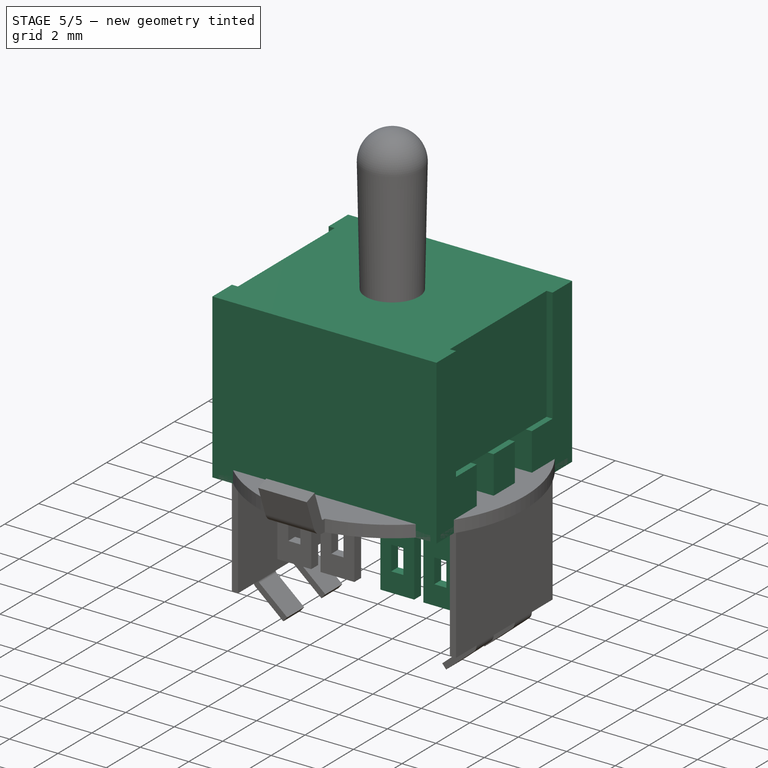
[diagram: stage 5 of 5 — iso view after this stage's code; geometry added in this stage tinted green]
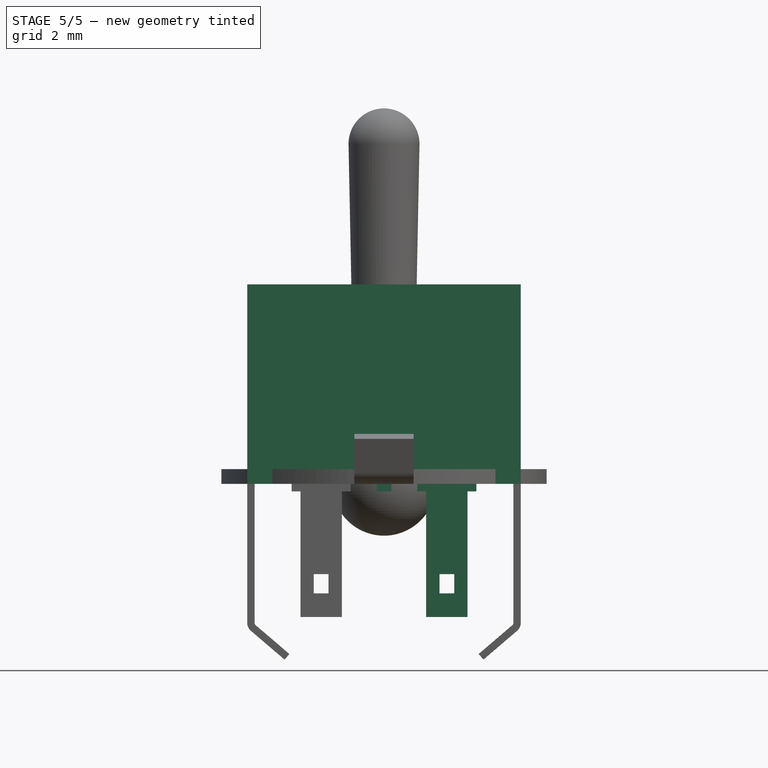
[diagram: stage 5 of 5 — front view after this stage's code; geometry added in this stage tinted green]
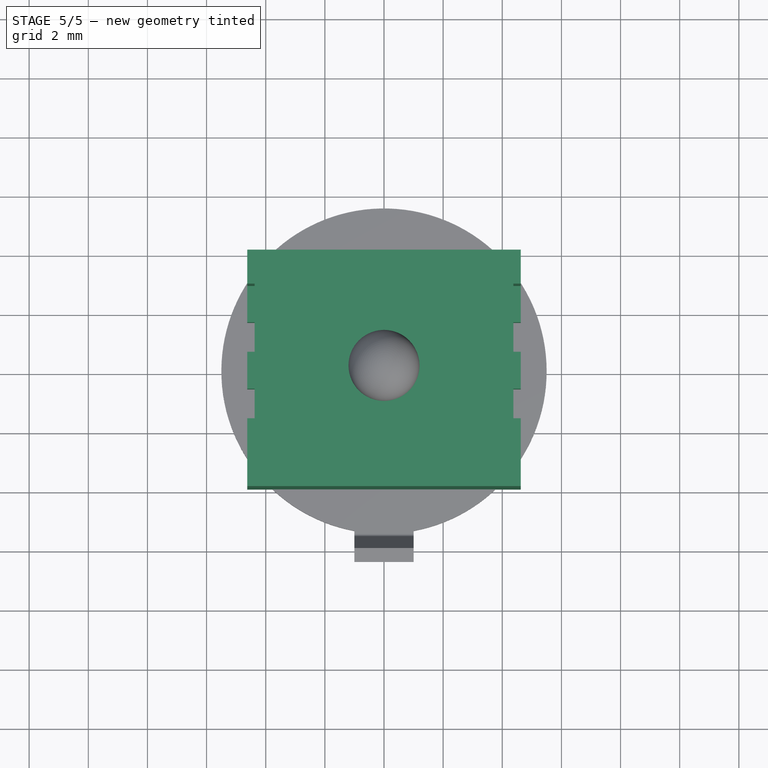
[diagram: stage 5 of 5 — top view after this stage's code; geometry added in this stage tinted green]
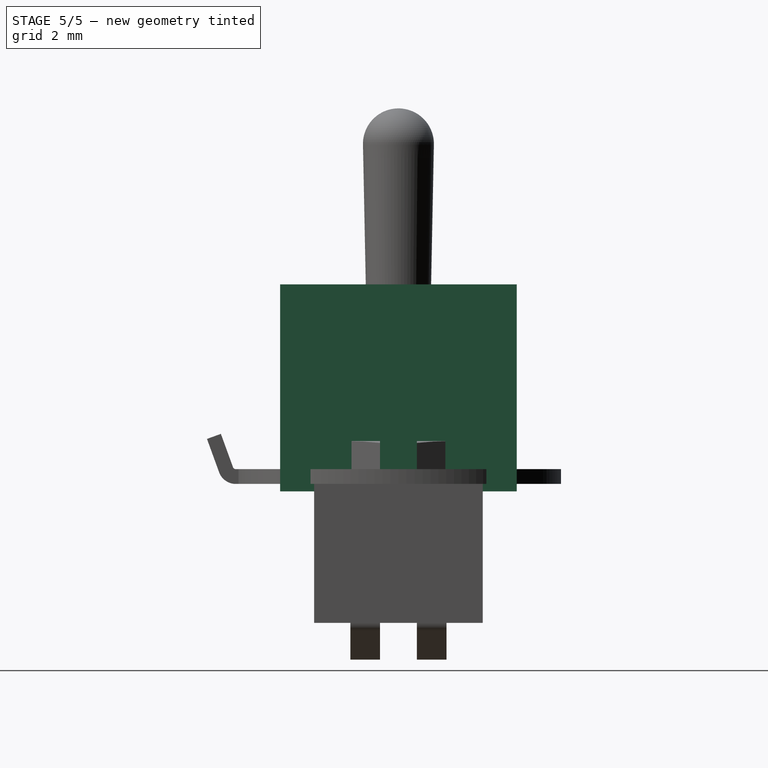
[diagram: stage 5 of 5 — right view after this stage's code; geometry added in this stage tinted green]
FEATURE [Sketcher::SketchObject] Sketch
  FullyConstrained = true
  MapMode = 5
  Support = -> [XY_Plane]
  sketch-geometry (4):
    g0: LineSegment StartX=-4.625 StartY=4 StartZ=0 EndX=4.625 EndY=4 EndZ=0
    g1: LineSegment StartX=4.625 StartY=4 StartZ=0 EndX=4.625 EndY=-4 EndZ=0
    g2: LineSegment StartX=4.625 StartY=-4 StartZ=0 EndX=-4.625 EndY=-4 EndZ=0
    g3: LineSegment StartX=-4.625 StartY=-4 StartZ=0 EndX=-4.625 EndY=4 EndZ=0
  constraints (11):
    c: Coincident(g0,g1)
    c: Coincident(g1,g2)
    c: Coincident(g2,g3)
    c: Coincident(g3,g0)
    c: Horizontal(g0)
    c: Horizontal(g2)
    c: Vertical(g1)
    c: Vertical(g3)
    c: Symmetric(g1,g0,g-1)
    c: DistanceY(g3,g3) = 8
    c: DistanceX(g0,g0) = 9.25
FEATURE [PartDesign::Pad] Pad
  Direction = (0,0,1)
  Length = 6.75
  Length2 = 10
  Profile = -> Sketch
  ReferenceAxis = -> Sketch [N_Axis]
  Type = 0
FEATURE [Sketcher::SketchObject] Sketch001
  ExternalGeometry = -> [Pad]
  FullyConstrained = true
  MapMode = 5
  Placement = pos=(4.625,0,0) rot=(0.57735,0.57735,0.57735;2.0944rad)
  Support = -> [Pad]
  sketch-geometry (4):
    g0: LineSegment StartX=-2.85 StartY=6.75 StartZ=0 EndX=2.85 EndY=6.75 EndZ=0
    g1: LineSegment StartX=2.85 StartY=6.75 StartZ=0 EndX=2.85 EndY=2.05 EndZ=0
    g2: LineSegment StartX=2.85 StartY=2.05 StartZ=0 EndX=-2.85 EndY=2.05 EndZ=0
    g3: LineSegment StartX=-2.85 StartY=2.05 StartZ=0 EndX=-2.85 EndY=6.75 EndZ=0
  constraints (11):
    c: Coincident(g0,g1)
    c: Coincident(g1,g2)
    c: Coincident(g2,g3)
    c: Coincident(g3,g0)
    c: Horizontal(g2)
    c: Vertical(g1)
    c: Vertical(g3)
    c: PointOnObject(g0,g-3)
    c: Symmetric(g0,g0,g-2)
    c: DistanceX(g0,g0) = 5.7
    c: DistanceY(g1,g1) = 4.7
FEATURE [PartDesign::Pocket] Pocket
  BaseFeature = -> Pad
  Direction = (-1,0,0)
  Length = 0.25
  Length2 = 5
  Profile = -> Sketch001
  ReferenceAxis = -> Sketch001 [N_Axis]
  Type = 0
FEATURE [Sketcher::SketchObject] Sketch002
  ExternalGeometry = -> [Pocket]
  FullyConstrained = true
  MapMode = 5
  Placement = pos=(-4.625,0,0) rot=(0.57735,-0.57735,-0.57735;2.0944rad)
  Support = -> [Pocket]
  sketch-geometry (4):
    g0: LineSegment StartX=-2.85 StartY=6.75 StartZ=0 EndX=2.85 EndY=6.75 EndZ=0
    g1: LineSegment StartX=2.85 StartY=6.75 StartZ=0 EndX=2.85 EndY=2.05 EndZ=0
    g2: LineSegment StartX=2.85 StartY=2.05 StartZ=0 EndX=-2.85 EndY=2.05 EndZ=0
    g3: LineSegment StartX=-2.85 StartY=2.05 StartZ=0 EndX=-2.85 EndY=6.75 EndZ=0
  constraints (10):
    c: Coincident(g0,g1)
    c: Coincident(g1,g2)
    c: Coincident(g2,g3)
    c: Coincident(g3,g0)
    c: Horizontal(g0)
    c: Horizontal(g2)
    c: Vertical(g1)
    c: Vertical(g3)
    c: Coincident(g0,g-3)
    c: Coincident(g1,g-4)
FEATURE [PartDesign::Pocket] Pocket001
  BaseFeature = -> Pocket
  Direction = (1,0,0)
  Length = 0.25
  Length2 = 5
  Profile = -> Sketch002
  ReferenceAxis = -> Sketch002 [N_Axis]
  Type = 0
FEATURE [Sketcher::SketchObject] Sketch003
  ExternalGeometry = -> [Pocket001]
  FullyConstrained = true
  MapMode = 5
  Placement = pos=(0,0,0) rot=(1,0,0;3.14159rad)
  Support = -> [Pocket001]
  sketch-geometry (16):
    g0: LineSegment StartX=3.125 StartY=1.625 StartZ=0 EndX=4.625 EndY=1.625 EndZ=0
    g1: LineSegment StartX=4.625 StartY=1.625 StartZ=0 EndX=4.625 EndY=0.625 EndZ=0
    g2: LineSegment StartX=4.625 StartY=0.625 StartZ=0 EndX=3.125 EndY=0.625 EndZ=0
    g3: LineSegment StartX=3.125 StartY=0.625 StartZ=0 EndX=3.125 EndY=1.625 EndZ=0
    g4: LineSegment StartX=3.125 StartY=-0.625 StartZ=0 EndX=4.625 EndY=-0.625 EndZ=0
    g5: LineSegment StartX=4.625 StartY=-0.625 StartZ=0 EndX=4.625 EndY=-1.625 EndZ=0
    g6: LineSegment StartX=4.625 StartY=-1.625 StartZ=0 EndX=3.125 EndY=-1.625 EndZ=0
    g7: LineSegment StartX=3.125 StartY=-1.625 StartZ=0 EndX=3.125 EndY=-0.625 EndZ=0
    g8: LineSegment StartX=-4.625 StartY=1.625 StartZ=0 EndX=-3.125 EndY=1.625 EndZ=0
    g9: LineSegment StartX=-3.125 StartY=1.625 StartZ=0 EndX=-3.125 EndY=0.625 EndZ=0
    g10: LineSegment StartX=-3.125 StartY=0.625 StartZ=0 EndX=-4.625 EndY=0.625 EndZ=0
    g11: LineSegment StartX=-4.625 StartY=0.625 StartZ=0 EndX=-4.625 EndY=1.625 EndZ=0
    g12: LineSegment StartX=-4.625 StartY=-0.625 StartZ=0 EndX=-3.125 EndY=-0.625 EndZ=0
    g13: LineSegment StartX=-3.125 StartY=-0.625 StartZ=0 EndX=-3.125 EndY=-1.625 EndZ=0
    g14: LineSegment StartX=-3.125 StartY=-1.625 StartZ=0 EndX=-4.625 EndY=-1.625 EndZ=0
    g15: LineSegment StartX=-4.625 StartY=-1.625 StartZ=0 EndX=-4.625 EndY=-0.625 EndZ=0
  constraints (45):
    c: Coincident(g0,g1)
    c: Coincident(g1,g2)
    c: Coincident(g2,g3)
    c: Coincident(g3,g0)
    c: Horizontal(g0)
    c: Horizontal(g2)
    c: Vertical(g1)
    c: Vertical(g3)
    c: Coincident(g4,g5)
    c: Coincident(g5,g6)
    c: Coincident(g6,g7)
    c: Coincident(g7,g4)
    c: Horizontal(g4)
    c: Horizontal(g6)
    c: Vertical(g5)
    c: Vertical(g7)
    c: Coincident(g8,g9)
    c: Coincident(g9,g10)
    c: Coincident(g10,g11)
    c: Coincident(g11,g8)
    c: Horizontal(g8)
    c: Horizontal(g10)
    c: Vertical(g9)
    c: Vertical(g11)
    c: Coincident(g12,g13)
    c: Coincident(g13,g14)
    c: Coincident(g14,g15)
    c: Coincident(g15,g12)
    c: Horizontal(g12)
    c: Horizontal(g14)
    c: Vertical(g13)
    c: Vertical(g15)
    c: Symmetric(g9,g12,g-1)
    c: Symmetric(g9,g2,g-2)
    c: Symmetric(g2,g4,g-1)
    c: Equal(g7,g3)
    c: Equal(g3,g9)
    c: Equal(g9,g13)
    c: DistanceX(g8,g0) = 6.25
    c: DistanceY(g11,g11) = 1
    c: DistanceY(g12,g10) = 1.25
    c: PointOnObject(g8,g-4)
    c: Equal(g12,g8)
    c: Equal(g8,g0)
    c: Equal(g0,g4)
FEATURE [PartDesign::Pocket] Pocket002
  BaseFeature = -> Pocket001
  Direction = (0,0,1)
  Length = 2.05
  Length2 = 5
  Profile = -> Sketch003
  ReferenceAxis = -> Sketch003 [N_Axis]
  Type = 0
FEATURE [Sketcher::SketchObject] Sketch004
  ExternalGeometry = -> [Pocket002]
  FullyConstrained = true
  MapMode = 5
  Placement = pos=(0,0,0) rot=(1,0,0;3.14159rad)
  Support = -> [Pocket002]
  sketch-geometry (4):
    g0: LineSegment StartX=-0.25 StartY=4 StartZ=0 EndX=0.25 EndY=4 EndZ=0
    g1: LineSegment StartX=0.25 StartY=4 StartZ=0 EndX=0.25 EndY=-4 EndZ=0
    g2: LineSegment StartX=0.25 StartY=-4 StartZ=0 EndX=-0.25 EndY=-4 EndZ=0
    g3: LineSegment StartX=-0.25 StartY=-4 StartZ=0 EndX=-0.25 EndY=4 EndZ=0
  constraints (11):
    c: Coincident(g0,g1)
    c: Coincident(g1,g2)
    c: Coincident(g2,g3)
    c: Coincident(g3,g0)
    c: Horizontal(g0)
    c: Horizontal(g2)
    c: Vertical(g1)
    c: Vertical(g3)
    c: Symmetric(g1,g0,g-1)
    c: PointOnObject(g0,g-3)
    c: DistanceX(g0,g0) = 0.5
FEATURE [PartDesign::Pad] Pad001
  BaseFeature = -> Pocket002
  Direction = (0,0,-1)
  Length = 0.25
  Length2 = 10
  Profile = -> Sketch004
  ReferenceAxis = -> Sketch004 [N_Axis]
  Refine = true
  Type = 0
FEATURE [Part::MultiFuse] Fusion001
  Shapes = -> [Part__Mirroring001,Fusion]
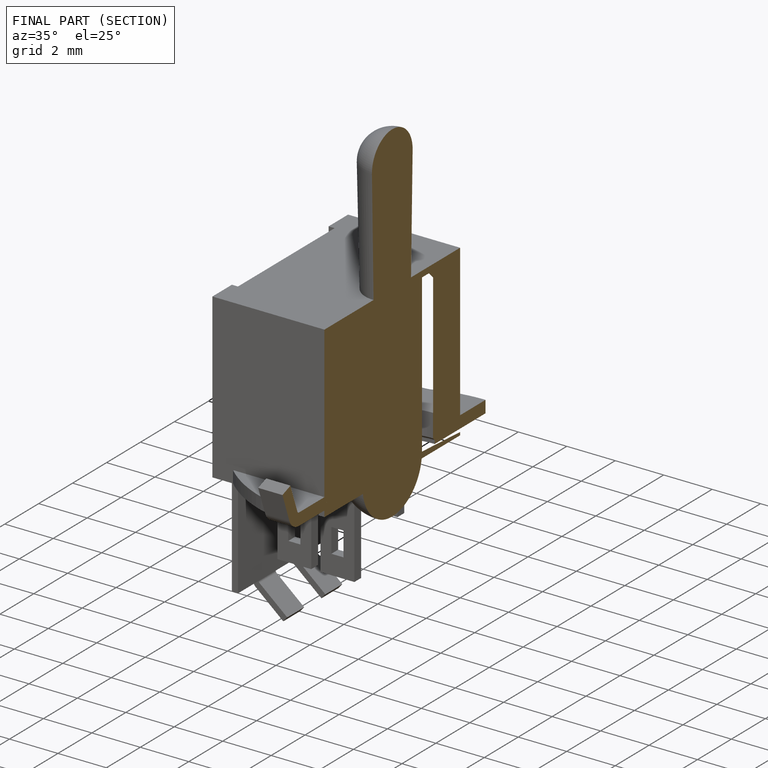
[diagram: finished part — half-section view (interior)]
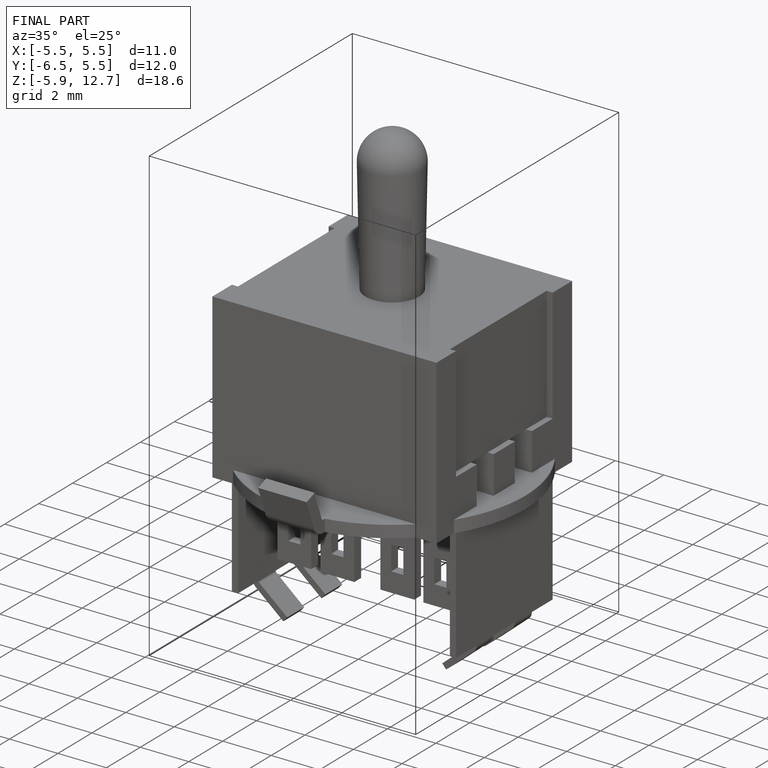
[diagram: finished part — iso view with bounding-box wireframe]
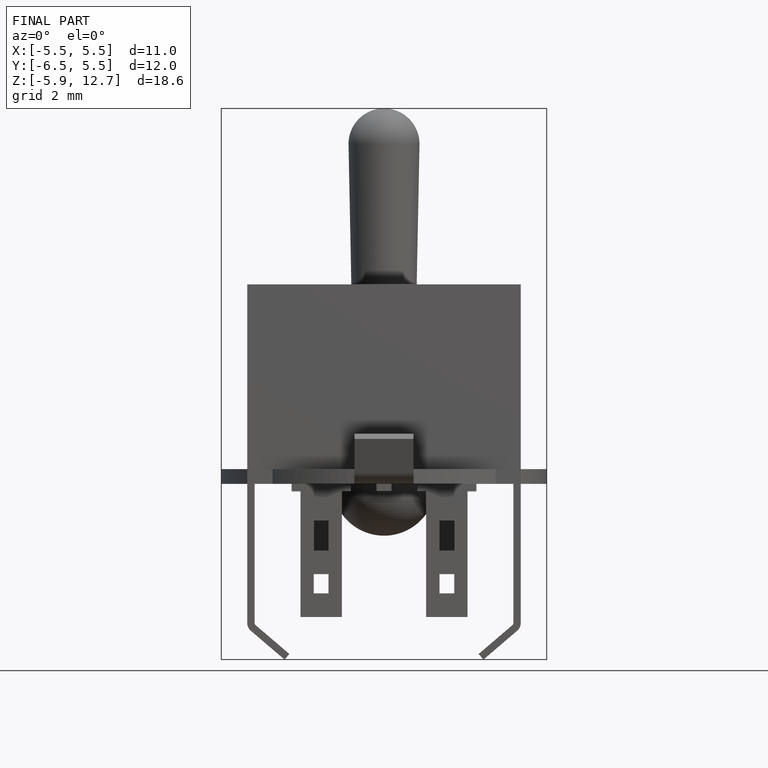
[diagram: finished part — front view with bounding-box wireframe]
